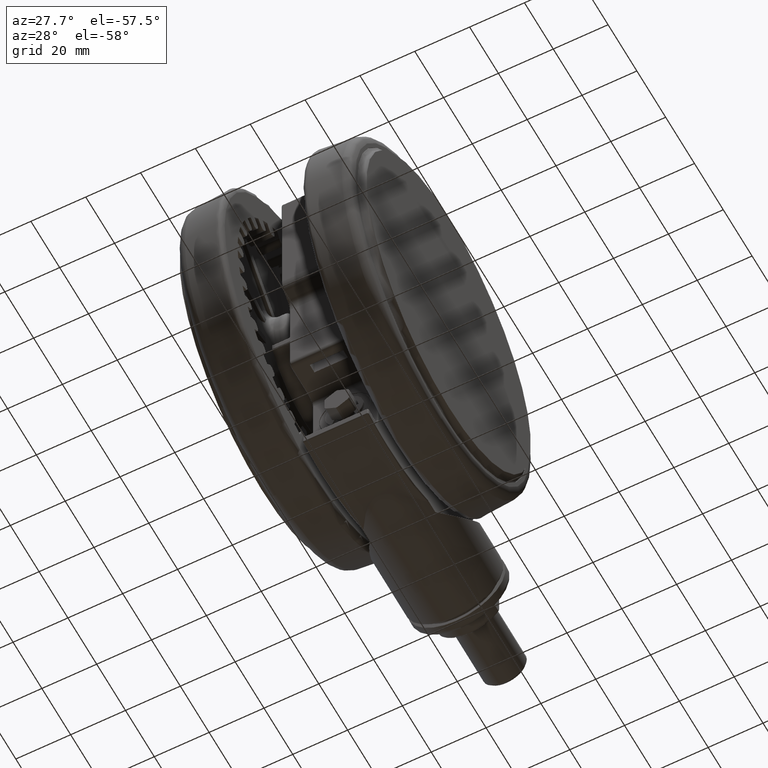
[diagram: clean part render]
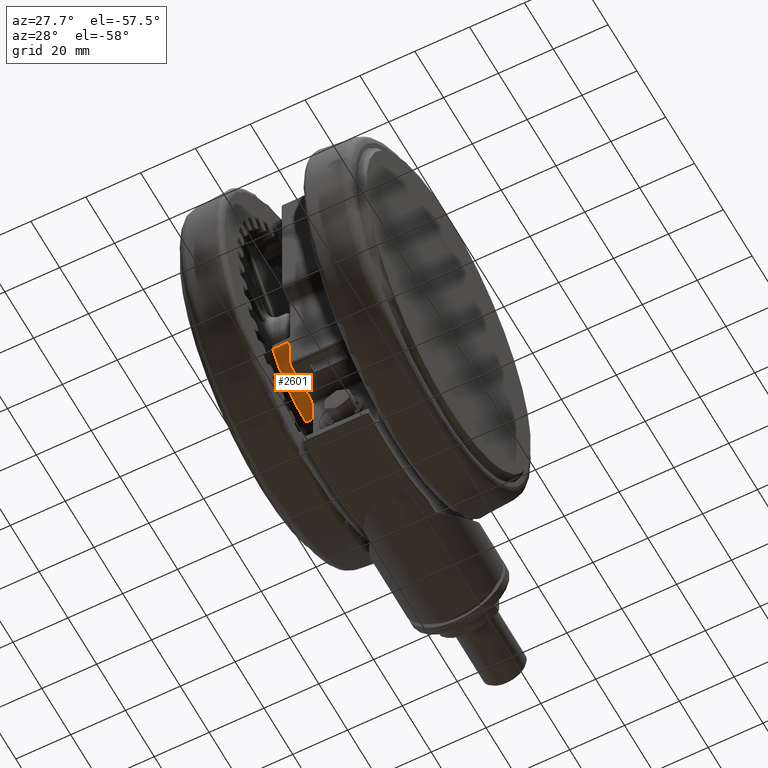
[diagram: same view with one face highlighted and labeled with its STEP entity id]
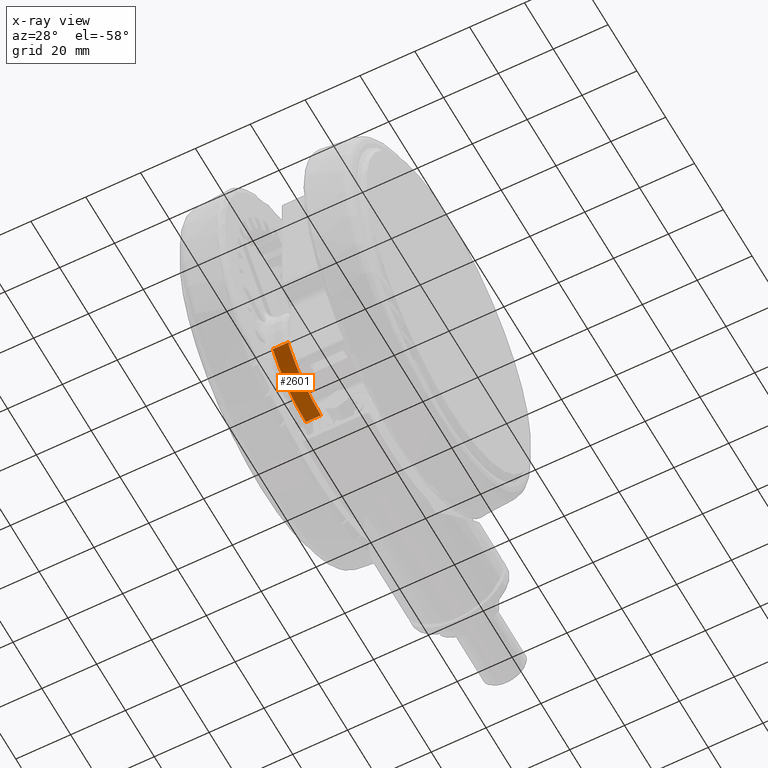
[diagram: x-ray of the same camera — body ghosted, the highlighted face saturated]
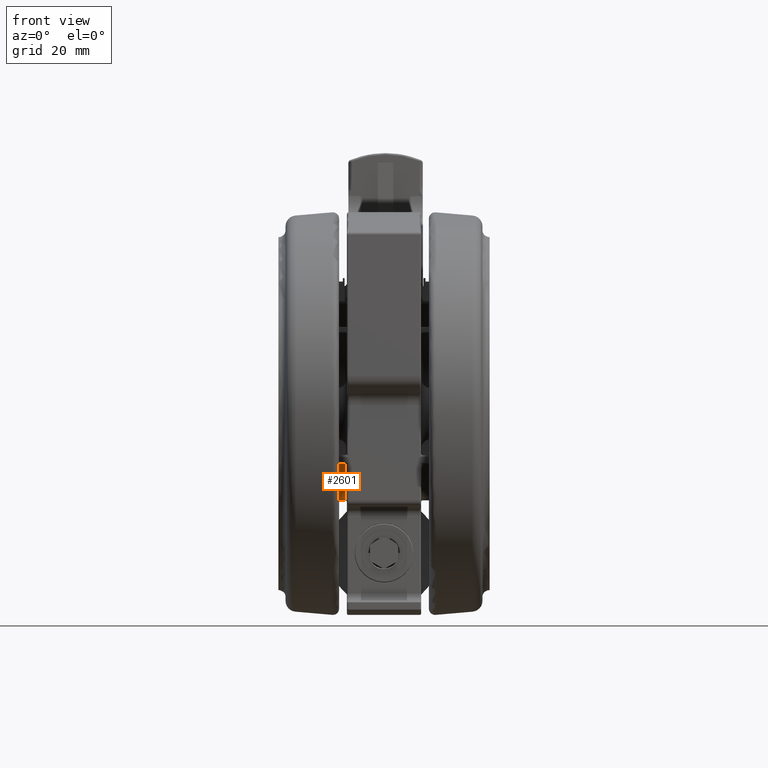
[diagram: same view with one face highlighted and labeled with its STEP entity id]
A machine part, auxiliary view. The second image highlights one B-rep face of the part: STEP entity #2601.
The next image is the same camera in x-ray: the body ghosted, the highlighted face saturated — about 0% of this face is hidden behind the body in this view.
A second angle (front view) of the same face is appended — the face is thin or edge-on in the first view.
In plain terms, the highlighted cylindrical surface (partial cylindrical patch) has radius 28 mm, axis along (-1, 0, 0).
Its self-contained STEP definition (entity closure, byte-faithful):
#2601 = ADVANCED_FACE ( 'NONE', ( #37924 ), #52616, .T. ) ;
#5687 = CARTESIAN_POINT ( 'NONE',  ( 16.25917900835617800, -22.79584902693832000, -46.31613386868943400 ) ) ;
#7387 = EDGE_LOOP ( 'NONE', ( #74716, #52072, #28575, #59605, #29474 ) ) ;
#9893 = AXIS2_PLACEMENT_3D ( 'NONE', #33923, #65195, #77820 ) ;
#10693 = EDGE_CURVE ( 'NONE', #51571, #38112, #80803, .T. ) ;
#11767 = CARTESIAN_POINT ( 'NONE',  ( 17.18596347954405000, -22.10526315789475400, -46.60000000000007200 ) ) ;
#12037 = CARTESIAN_POINT ( 'NONE',  ( 16.09886808812995100, -22.90909090909090300, -46.17495957457612100 ) ) ;
#13333 = AXIS2_PLACEMENT_3D ( 'NONE', #66505, #28901, #72842 ) ;
#14001 = CARTESIAN_POINT ( 'NONE',  ( 28.00000000000000000, 3.429011037612589300E-015, -15.60000000000006900 ) ) ;
#15579 = DIRECTION ( 'NONE',  ( 0.0000000000000000000, 0.0000000000000000000, -1.000000000000000000 ) ) ;
#17983 = VERTEX_POINT ( 'NONE', #80282 ) ;
#18079 = CARTESIAN_POINT ( 'NONE',  ( 16.99441737026645800, -22.25418264440707400, -46.60000000000007200 ) ) ;
#20295 = DIRECTION ( 'NONE',  ( 0.0000000000000000000, 0.0000000000000000000, -1.000000000000000000 ) ) ;
#20506 = LINE ( 'NONE', #78197, #33310 ) ;
#26210 = VERTEX_POINT ( 'NONE', #73530 ) ;
#28575 = ORIENTED_EDGE ( 'NONE', *, *, #28713, .T. ) ;
#28713 = EDGE_CURVE ( 'NONE', #68316, #26210, #58938, .T. ) ;
#28901 = DIRECTION ( 'NONE',  ( -0.0000000000000000000, -0.0000000000000000000, -1.000000000000000000 ) ) ;
#29474 = ORIENTED_EDGE ( 'NONE', *, *, #44341, .T. ) ;
#33185 = DIRECTION ( 'NONE',  ( -0.0000000000000000000, -0.0000000000000000000, 1.000000000000000000 ) ) ;
#33310 = VECTOR ( 'NONE', #15579, 1000.000000000000000 ) ;
#33923 = CARTESIAN_POINT ( 'NONE',  ( 0.0000000000000000000, 0.0000000000000000000, -15.60000000000006900 ) ) ;
#34023 = CARTESIAN_POINT ( 'NONE',  ( 28.00000000000000000, 3.429011037612589300E-015, -52.10000000000006500 ) ) ;
#36492 = CARTESIAN_POINT ( 'NONE',  ( 17.18596347954405000, -22.10526315789475400, -46.60000000000007200 ) ) ;
#37079 = CARTESIAN_POINT ( 'NONE',  ( 16.80548304615777200, -22.39707559562938100, -46.56736251112973700 ) ) ;
#37924 = FACE_OUTER_BOUND ( 'NONE', #7387, .T. ) ;
#38112 = VERTEX_POINT ( 'NONE', #34023 ) ;
#42324 = AXIS2_PLACEMENT_3D ( 'NONE', #70786, #33185, #77083 ) ;
#43388 = CARTESIAN_POINT ( 'NONE',  ( 16.43432789863977200, -22.66990298622219100, -46.42257822298039800 ) ) ;
#44341 = EDGE_CURVE ( 'NONE', #17983, #38112, #56664, .T. ) ;
#47439 = VECTOR ( 'NONE', #20295, 1000.000000000000000 ) ;
#49661 = CARTESIAN_POINT ( 'NONE',  ( 16.17568041431584900, -22.85511270839683100, -46.25314354944418200 ) ) ;
#51571 = VERTEX_POINT ( 'NONE', #55597 ) ;
#52072 = ORIENTED_EDGE ( 'NONE', *, *, #56824, .T. ) ;
#52616 = CYLINDRICAL_SURFACE ( 'NONE', #9893, 28.00000000000000000 ) ;
#55597 = CARTESIAN_POINT ( 'NONE',  ( 28.00000000000000000, 3.429011037612589300E-015, -46.60000000000007200 ) ) ;
#56664 = CIRCLE ( 'NONE', #42324, 28.00000000000000000 ) ;
#56824 = EDGE_CURVE ( 'NONE', #51571, #68316, #64609, .T. ) ;
#58938 = B_SPLINE_CURVE_WITH_KNOTS ( 'NONE', 3,
 ( #11767, #18079, #37079, #80929, #43388, #5687, #49661, #12037 ),
 .UNSPECIFIED., .F., .F.,
 ( 4, 2, 2, 4 ),
 ( 0.0000000000000000000, 0.0007168938690098337300, 0.001075340803514750500, 0.001433787738019667500 ),
 .UNSPECIFIED. ) ;
#59605 = ORIENTED_EDGE ( 'NONE', *, *, #62631, .T. ) ;
#62631 = EDGE_CURVE ( 'NONE', #26210, #17983, #20506, .T. ) ;
#64609 = CIRCLE ( 'NONE', #13333, 28.00000000000000000 ) ;
#65195 = DIRECTION ( 'NONE',  ( 0.0000000000000000000, 0.0000000000000000000, -1.000000000000000000 ) ) ;
#66505 = CARTESIAN_POINT ( 'NONE',  ( 0.0000000000000000000, 0.0000000000000000000, -46.60000000000007200 ) ) ;
#68316 = VERTEX_POINT ( 'NONE', #36492 ) ;
#70786 = CARTESIAN_POINT ( 'NONE',  ( 0.0000000000000000000, 0.0000000000000000000, -52.10000000000006500 ) ) ;
#72842 = DIRECTION ( 'NONE',  ( 1.000000000000000000, 0.0000000000000000000, 0.0000000000000000000 ) ) ;
#73530 = CARTESIAN_POINT ( 'NONE',  ( 16.09886808812995100, -22.90909090909090300, -46.17495957457612100 ) ) ;
#74716 = ORIENTED_EDGE ( 'NONE', *, *, #10693, .F. ) ;
#77083 = DIRECTION ( 'NONE',  ( -1.000000000000000000, 0.0000000000000000000, 0.0000000000000000000 ) ) ;
#77820 = DIRECTION ( 'NONE',  ( -1.000000000000000000, 0.0000000000000000000, 0.0000000000000000000 ) ) ;
#78197 = CARTESIAN_POINT ( 'NONE',  ( 16.09886808812995100, -22.90909090909090300, -15.60000000000006900 ) ) ;
#80282 = CARTESIAN_POINT ( 'NONE',  ( 16.09886808812995100, -22.90909090909090300, -52.10000000000006500 ) ) ;
#80803 = LINE ( 'NONE', #14001, #47439 ) ;
#80929 = CARTESIAN_POINT ( 'NONE',  ( 16.52689954498204400, -22.60254201064187600, -46.46591368779078800 ) ) ;